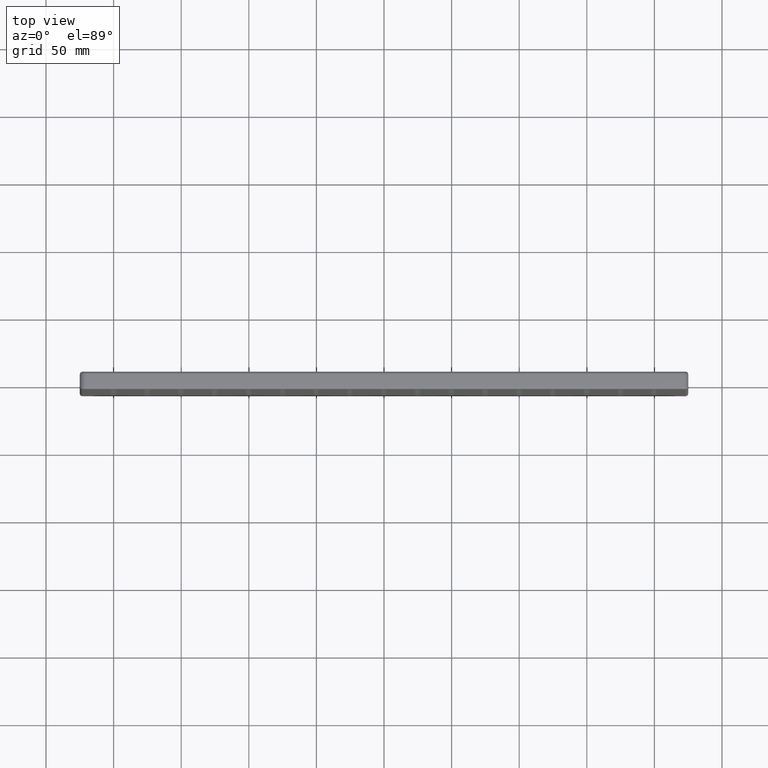
[diagram: clean part render]
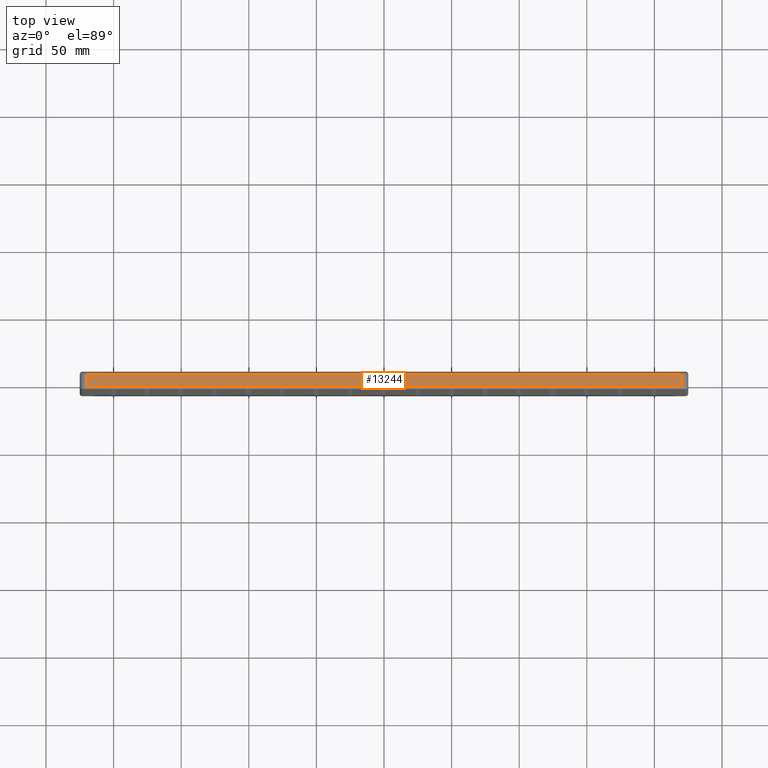
[diagram: same view with one face highlighted and labeled with its STEP entity id]
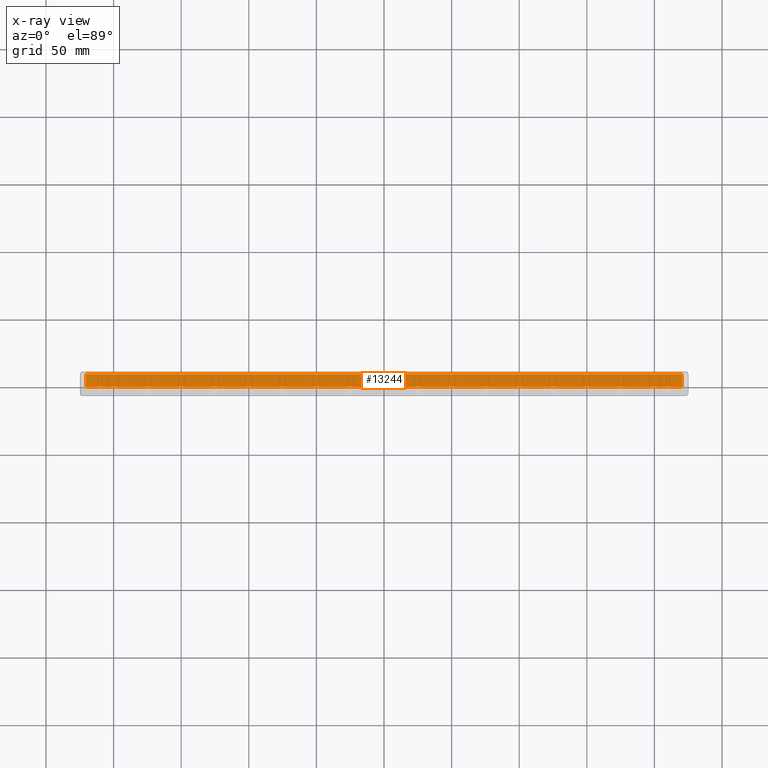
[diagram: x-ray of the same camera — body ghosted, the highlighted face saturated]
A machine part, top view. The second image highlights one B-rep face of the part: STEP entity #13244.
The next image is the same camera in x-ray: the body ghosted, the highlighted face saturated — about 0% of this face is hidden behind the body in this view.
In plain terms, the highlighted planar face has unit normal (0, 0, -1).
Its self-contained STEP definition (entity closure, byte-faithful):
#225 = ORIENTED_EDGE ( 'NONE', *, *, #12051, .T. ) ;
#728 = CARTESIAN_POINT ( 'NONE',  ( 220.0000000000000000, 4.500000000000000000, 150.0000000000000000 ) ) ;
#858 = VECTOR ( 'NONE', #4482, 1000.000000000000000 ) ;
#1320 = LINE ( 'NONE', #12666, #9343 ) ;
#1359 = CARTESIAN_POINT ( 'NONE',  ( -220.0000000000000000, -4.500000000000000000, 150.0000000000000000 ) ) ;
#1952 = PLANE ( 'NONE',  #3412 ) ;
#2058 = DIRECTION ( 'NONE',  ( -1.000000000000000000, 0.0000000000000000000, -0.0000000000000000000 ) ) ;
#2060 = ORIENTED_EDGE ( 'NONE', *, *, #4677, .T. ) ;
#2377 = EDGE_CURVE ( 'NONE', #13445, #4135, #1320, .T. ) ;
#2770 = VECTOR ( 'NONE', #9752, 1000.000000000000000 ) ;
#3412 = AXIS2_PLACEMENT_3D ( 'NONE', #4362, #9187, #2058 ) ;
#3857 = VERTEX_POINT ( 'NONE', #728 ) ;
#4052 = FACE_OUTER_BOUND ( 'NONE', #4470, .T. ) ;
#4135 = VERTEX_POINT ( 'NONE', #1359 ) ;
#4362 = CARTESIAN_POINT ( 'NONE',  ( -225.0000000000000000, 6.500000000000000000, 150.0000000000000000 ) ) ;
#4470 = EDGE_LOOP ( 'NONE', ( #13715, #225, #2060, #4510 ) ) ;
#4482 = DIRECTION ( 'NONE',  ( -1.000000000000000000, -0.0000000000000000000, -0.0000000000000000000 ) ) ;
#4510 = ORIENTED_EDGE ( 'NONE', *, *, #12996, .T. ) ;
#4677 = EDGE_CURVE ( 'NONE', #9800, #3857, #9144, .T. ) ;
#5565 = CARTESIAN_POINT ( 'NONE',  ( -220.0000000000000000, 4.500000000000000000, 150.0000000000000000 ) ) ;
#5602 = VECTOR ( 'NONE', #13526, 1000.000000000000000 ) ;
#7219 = LINE ( 'NONE', #10409, #858 ) ;
#8092 = CARTESIAN_POINT ( 'NONE',  ( 220.0000000000000000, -4.500000000000000000, 150.0000000000000000 ) ) ;
#9144 = LINE ( 'NONE', #12232, #5602 ) ;
#9187 = DIRECTION ( 'NONE',  ( 0.0000000000000000000, 0.0000000000000000000, -1.000000000000000000 ) ) ;
#9343 = VECTOR ( 'NONE', #13440, 1000.000000000000000 ) ;
#9752 = DIRECTION ( 'NONE',  ( 1.000000000000000000, 0.0000000000000000000, 0.0000000000000000000 ) ) ;
#9800 = VERTEX_POINT ( 'NONE', #8092 ) ;
#10409 = CARTESIAN_POINT ( 'NONE',  ( -225.0000000000000000, 4.500000000000000000, 150.0000000000000000 ) ) ;
#12051 = EDGE_CURVE ( 'NONE', #4135, #9800, #14368, .T. ) ;
#12232 = CARTESIAN_POINT ( 'NONE',  ( 220.0000000000000000, 6.500000000000000000, 150.0000000000000000 ) ) ;
#12666 = CARTESIAN_POINT ( 'NONE',  ( -220.0000000000000000, 6.500000000000000000, 150.0000000000000000 ) ) ;
#12996 = EDGE_CURVE ( 'NONE', #3857, #13445, #7219, .T. ) ;
#13244 = ADVANCED_FACE ( 'NONE', ( #4052 ), #1952, .F. ) ;
#13440 = DIRECTION ( 'NONE',  ( 0.0000000000000000000, -1.000000000000000000, 0.0000000000000000000 ) ) ;
#13445 = VERTEX_POINT ( 'NONE', #5565 ) ;
#13526 = DIRECTION ( 'NONE',  ( -0.0000000000000000000, 1.000000000000000000, -0.0000000000000000000 ) ) ;
#13715 = ORIENTED_EDGE ( 'NONE', *, *, #2377, .T. ) ;
#14368 = LINE ( 'NONE', #15488, #2770 ) ;
#15488 = CARTESIAN_POINT ( 'NONE',  ( 220.0000000000000000, -4.500000000000000000, 150.0000000000000000 ) ) ;